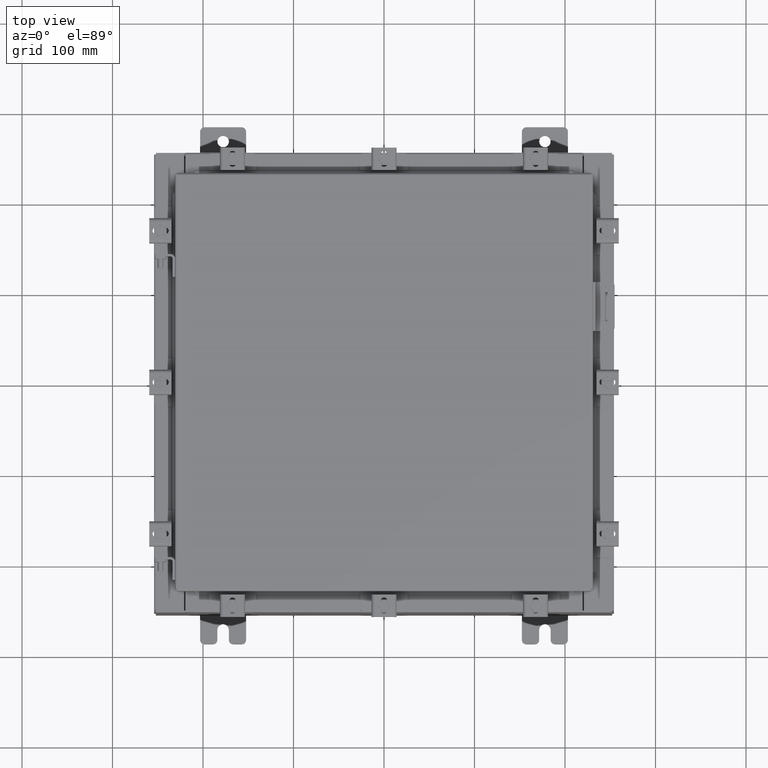
[diagram: clean part render]
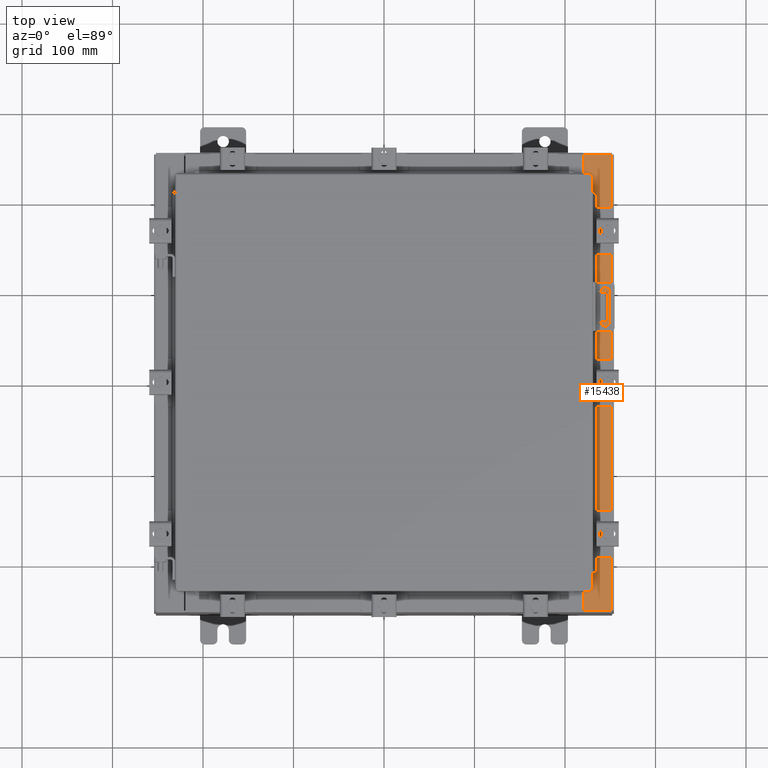
[diagram: same view with one face highlighted and labeled with its STEP entity id]
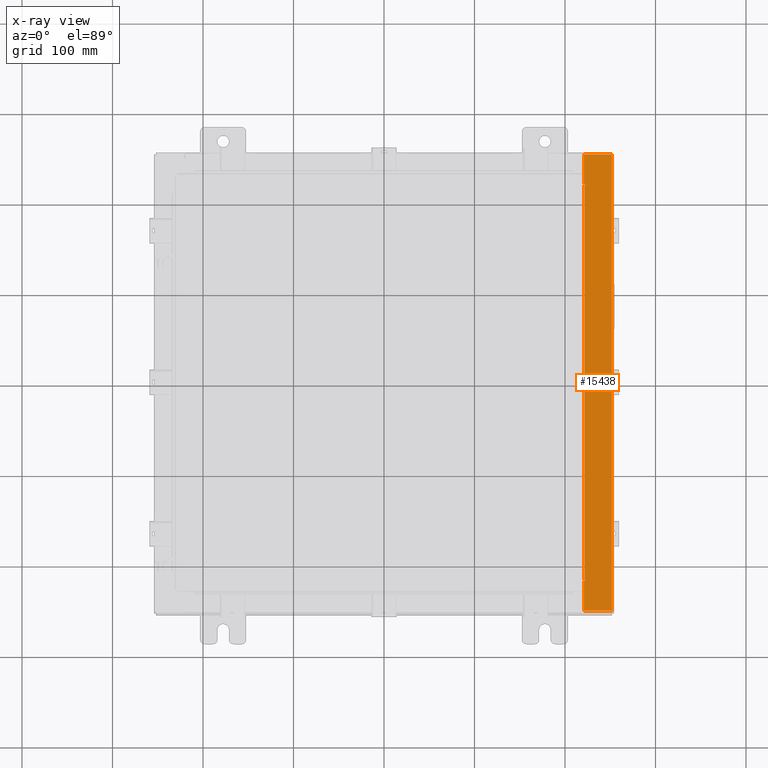
[diagram: x-ray of the same camera — body ghosted, the highlighted face saturated]
A machine part, top view. The second image highlights one B-rep face of the part: STEP entity #15438.
The next image is the same camera in x-ray: the body ghosted, the highlighted face saturated — about 0% of this face is hidden behind the body in this view.
In plain terms, the highlighted planar face has unit normal (-0, 0, -1).
Its self-contained STEP definition (entity closure, byte-faithful):
#156 = VECTOR ( 'NONE', #8918, 39.37007874015748100 ) ;
#359 = VECTOR ( 'NONE', #12074, 39.37007874015748100 ) ;
#432 = ORIENTED_EDGE ( 'NONE', *, *, #8698, .F. ) ;
#519 = ORIENTED_EDGE ( 'NONE', *, *, #10289, .T. ) ;
#593 = ORIENTED_EDGE ( 'NONE', *, *, #7236, .T. ) ;
#619 = AXIS2_PLACEMENT_3D ( 'NONE', #19134, #8660, #20867 ) ;
#907 = LINE ( 'NONE', #3326, #359 ) ;
#929 = AXIS2_PLACEMENT_3D ( 'NONE', #1594, #13787, #3361 ) ;
#1091 = CARTESIAN_POINT ( 'NONE',  ( 8.750050000000031900, 8.593749999999992900, 7.925300000000008900 ) ) ;
#1578 = DIRECTION ( 'NONE',  ( -1.000000000000000000, 2.170286390199861100E-014, 0.0000000000000000000 ) ) ;
#1594 = CARTESIAN_POINT ( 'NONE',  ( 8.750050000000031900, 8.612424999999992900, 7.925300000000008900 ) ) ;
#1906 = ORIENTED_EDGE ( 'NONE', *, *, #9250, .F. ) ;
#2039 = CARTESIAN_POINT ( 'NONE',  ( 8.712700000000031900, -8.593750000000005300, 7.925300000000008900 ) ) ;
#2093 = DIRECTION ( 'NONE',  ( 1.000000000000000000, 2.170286390199955400E-014, 0.0000000000000000000 ) ) ;
#2118 = ORIENTED_EDGE ( 'NONE', *, *, #14670, .F. ) ;
#2212 = LINE ( 'NONE', #12775, #10917 ) ;
#2449 = VERTEX_POINT ( 'NONE', #1091 ) ;
#2496 = CARTESIAN_POINT ( 'NONE',  ( 8.699700000000030200, -9.925300000000001800, 7.925300000000008900 ) ) ;
#2918 = VERTEX_POINT ( 'NONE', #10946 ) ;
#2984 = EDGE_CURVE ( 'NONE', #14225, #10590, #2212, .T. ) ;
#3055 = VERTEX_POINT ( 'NONE', #7820 ) ;
#3326 = CARTESIAN_POINT ( 'NONE',  ( 8.750050000000031900, -8.593750000000005300, 7.925300000000008900 ) ) ;
#3361 = DIRECTION ( 'NONE',  ( 1.000000000000000000, 0.0000000000000000000, 0.0000000000000000000 ) ) ;
#3795 = LINE ( 'NONE', #4021, #11965 ) ;
#4021 = CARTESIAN_POINT ( 'NONE',  ( 8.699700000000030200, 9.578051238947307000E-016, 7.925300000000008900 ) ) ;
#4304 = VERTEX_POINT ( 'NONE', #21216 ) ;
#4779 = LINE ( 'NONE', #10676, #156 ) ;
#4886 = EDGE_CURVE ( 'NONE', #2449, #2918, #19856, .T. ) ;
#5204 = VERTEX_POINT ( 'NONE', #9553 ) ;
#5728 = ORIENTED_EDGE ( 'NONE', *, *, #12739, .F. ) ;
#5778 = DIRECTION ( 'NONE',  ( -0.0000000000000000000, 1.000000000000000000, -0.0000000000000000000 ) ) ;
#5877 = DIRECTION ( 'NONE',  ( 1.100963394019027800E-016, -1.000000000000000000, -7.852910284722398000E-031 ) ) ;
#6632 = VECTOR ( 'NONE', #20699, 39.37007874015748100 ) ;
#6672 = EDGE_LOOP ( 'NONE', ( #432, #13016, #519, #13530, #593, #19297, #22045, #14623, #2118, #8538, #1906, #5728 ) ) ;
#6800 = AXIS2_PLACEMENT_3D ( 'NONE', #6887, #19066, #8616 ) ;
#6816 = EDGE_CURVE ( 'NONE', #20937, #5204, #16015, .T. ) ;
#6887 = CARTESIAN_POINT ( 'NONE',  ( 5.679009539018279500E-014, 0.0000000000000000000, 7.925300000000071100 ) ) ;
#7214 = VECTOR ( 'NONE', #5877, 39.37007874015748100 ) ;
#7236 = EDGE_CURVE ( 'NONE', #20937, #4304, #4779, .T. ) ;
#7291 = CARTESIAN_POINT ( 'NONE',  ( 8.699700000000030200, -8.631100000000005300, 7.925300000000008900 ) ) ;
#7740 = LINE ( 'NONE', #19768, #7214 ) ;
#7820 = CARTESIAN_POINT ( 'NONE',  ( 8.699700000000030200, -8.631100000000005300, 7.925300000000008900 ) ) ;
#7905 = VERTEX_POINT ( 'NONE', #19220 ) ;
#7998 = VECTOR ( 'NONE', #2093, 39.37007874015748100 ) ;
#8538 = ORIENTED_EDGE ( 'NONE', *, *, #2984, .F. ) ;
#8616 = DIRECTION ( 'NONE',  ( -1.000000000000000000, 0.0000000000000000000, 7.132762385546378400E-015 ) ) ;
#8660 = DIRECTION ( 'NONE',  ( 7.132762385546378400E-015, 0.0000000000000000000, 1.000000000000000000 ) ) ;
#8698 = EDGE_CURVE ( 'NONE', #3055, #19583, #12626, .T. ) ;
#8918 = DIRECTION ( 'NONE',  ( -1.000000000000000000, 0.0000000000000000000, 7.132762385546378400E-015 ) ) ;
#9250 = EDGE_CURVE ( 'NONE', #17490, #14225, #907, .T. ) ;
#9515 = CARTESIAN_POINT ( 'NONE',  ( 9.912300000000028500, -9.925300000000001800, 7.925300000000000000 ) ) ;
#9553 = CARTESIAN_POINT ( 'NONE',  ( 9.912300000000028500, -9.925300000000001800, 7.925300000000000000 ) ) ;
#10289 = EDGE_CURVE ( 'NONE', #11549, #5204, #10955, .T. ) ;
#10590 = VERTEX_POINT ( 'NONE', #17586 ) ;
#10676 = CARTESIAN_POINT ( 'NONE',  ( 5.679009539018279500E-014, 9.925299999999996500, 7.925300000000071100 ) ) ;
#10917 = VECTOR ( 'NONE', #5778, 39.37007874015748100 ) ;
#10946 = CARTESIAN_POINT ( 'NONE',  ( 8.750050000000031900, 8.631099999999994700, 7.925300000000008900 ) ) ;
#10955 = LINE ( 'NONE', #11589, #19188 ) ;
#11062 = CARTESIAN_POINT ( 'NONE',  ( 8.750050000000031900, -8.631100000000005300, 7.925300000000008900 ) ) ;
#11306 = VECTOR ( 'NONE', #14821, 39.37007874015748100 ) ;
#11549 = VERTEX_POINT ( 'NONE', #2496 ) ;
#11589 = CARTESIAN_POINT ( 'NONE',  ( 5.679009539018279500E-014, -9.925300000000001800, 7.925300000000071100 ) ) ;
#11965 = VECTOR ( 'NONE', #14499, 39.37007874015748100 ) ;
#12003 = CARTESIAN_POINT ( 'NONE',  ( 8.750050000000031900, 8.631099999999994700, 7.925300000000008900 ) ) ;
#12074 = DIRECTION ( 'NONE',  ( -1.000000000000000000, 0.0000000000000000000, 0.0000000000000000000 ) ) ;
#12626 = LINE ( 'NONE', #7291, #7998 ) ;
#12739 = EDGE_CURVE ( 'NONE', #19583, #17490, #20461, .T. ) ;
#12775 = CARTESIAN_POINT ( 'NONE',  ( 8.712700000000031900, -8.593750000000005300, 7.925300000000008900 ) ) ;
#13016 = ORIENTED_EDGE ( 'NONE', *, *, #18489, .T. ) ;
#13310 = LINE ( 'NONE', #12003, #19118 ) ;
#13530 = ORIENTED_EDGE ( 'NONE', *, *, #6816, .F. ) ;
#13787 = DIRECTION ( 'NONE',  ( 7.132762385546378400E-015, 0.0000000000000000000, 1.000000000000000000 ) ) ;
#14225 = VERTEX_POINT ( 'NONE', #2039 ) ;
#14499 = DIRECTION ( 'NONE',  ( 1.100963394019027800E-016, -1.000000000000000000, -7.852910284722398000E-031 ) ) ;
#14623 = ORIENTED_EDGE ( 'NONE', *, *, #4886, .F. ) ;
#14670 = EDGE_CURVE ( 'NONE', #10590, #2449, #16439, .T. ) ;
#14821 = DIRECTION ( 'NONE',  ( -0.0000000000000000000, -1.000000000000000000, -0.0000000000000000000 ) ) ;
#15438 = ADVANCED_FACE ( 'NONE', ( #20200 ), #17335, .F. ) ;
#16015 = LINE ( 'NONE', #9515, #11306 ) ;
#16439 = LINE ( 'NONE', #20783, #6632 ) ;
#16583 = EDGE_CURVE ( 'NONE', #4304, #7905, #3795, .T. ) ;
#16913 = DIRECTION ( 'NONE',  ( 1.000000000000000000, 0.0000000000000000000, -7.132762385546378400E-015 ) ) ;
#17335 = PLANE ( 'NONE',  #6800 ) ;
#17490 = VERTEX_POINT ( 'NONE', #21040 ) ;
#17586 = CARTESIAN_POINT ( 'NONE',  ( 8.712700000000031900, 8.593749999999994700, 7.925300000000008900 ) ) ;
#17696 = CARTESIAN_POINT ( 'NONE',  ( 9.912300000000028500, 9.925299999999991100, 7.925300000000000000 ) ) ;
#18168 = EDGE_CURVE ( 'NONE', #2918, #7905, #13310, .T. ) ;
#18489 = EDGE_CURVE ( 'NONE', #3055, #11549, #7740, .T. ) ;
#19066 = DIRECTION ( 'NONE',  ( -7.132762385546378400E-015, 0.0000000000000000000, -1.000000000000000000 ) ) ;
#19118 = VECTOR ( 'NONE', #1578, 39.37007874015748100 ) ;
#19134 = CARTESIAN_POINT ( 'NONE',  ( 8.750050000000031900, -8.612425000000005300, 7.925300000000008900 ) ) ;
#19188 = VECTOR ( 'NONE', #16913, 39.37007874015748100 ) ;
#19220 = CARTESIAN_POINT ( 'NONE',  ( 8.699700000000028400, 8.631099999999994700, 7.925300000000008900 ) ) ;
#19297 = ORIENTED_EDGE ( 'NONE', *, *, #16583, .T. ) ;
#19583 = VERTEX_POINT ( 'NONE', #11062 ) ;
#19768 = CARTESIAN_POINT ( 'NONE',  ( 8.699700000000030200, 9.578051238947307000E-016, 7.925300000000008900 ) ) ;
#19856 = CIRCLE ( 'NONE', #929, 0.01867500000000058700 ) ;
#20200 = FACE_OUTER_BOUND ( 'NONE', #6672, .T. ) ;
#20461 = CIRCLE ( 'NONE', #619, 0.01867500000000058700 ) ;
#20699 = DIRECTION ( 'NONE',  ( 1.000000000000000000, 0.0000000000000000000, 0.0000000000000000000 ) ) ;
#20783 = CARTESIAN_POINT ( 'NONE',  ( 8.712700000000031900, 8.593749999999994700, 7.925300000000008900 ) ) ;
#20867 = DIRECTION ( 'NONE',  ( 1.000000000000000000, 0.0000000000000000000, 0.0000000000000000000 ) ) ;
#20937 = VERTEX_POINT ( 'NONE', #17696 ) ;
#21040 = CARTESIAN_POINT ( 'NONE',  ( 8.750050000000031900, -8.593750000000005300, 7.925300000000008900 ) ) ;
#21216 = CARTESIAN_POINT ( 'NONE',  ( 8.699700000000028400, 9.925299999999992900, 7.925300000000008900 ) ) ;
#22045 = ORIENTED_EDGE ( 'NONE', *, *, #18168, .F. ) ;